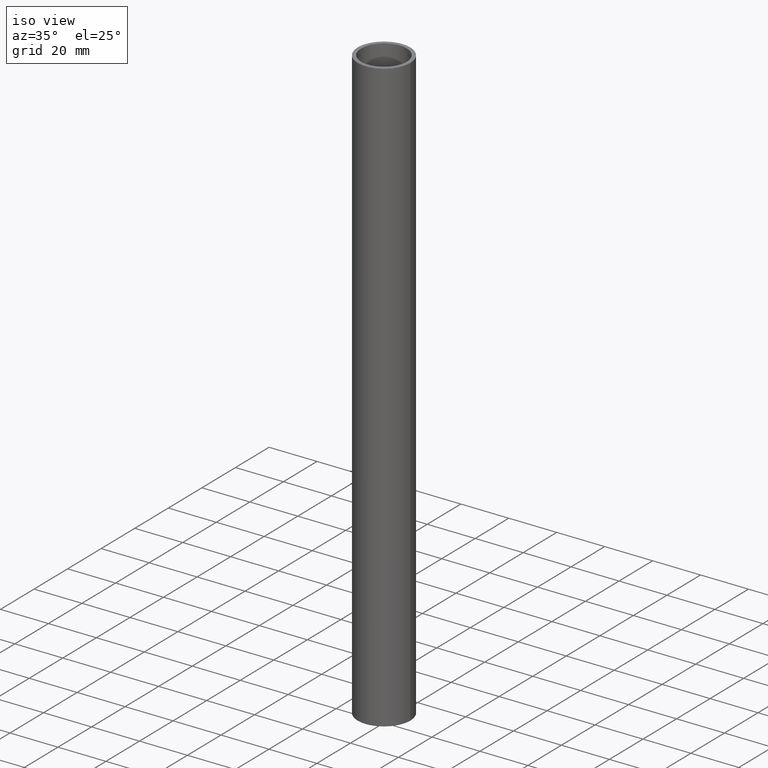
[diagram: clean part render]
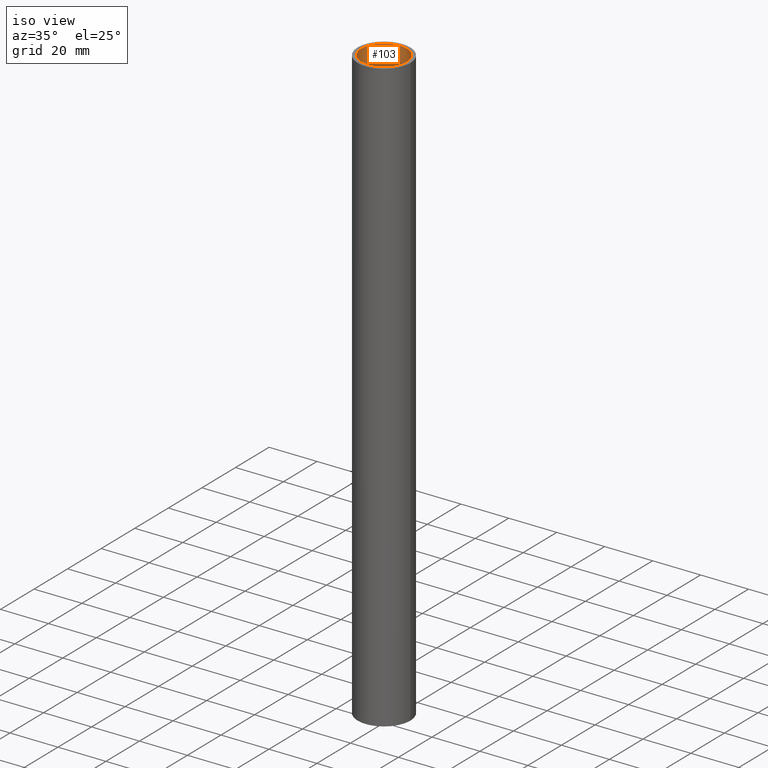
[diagram: same view with one face highlighted and labeled with its STEP entity id]
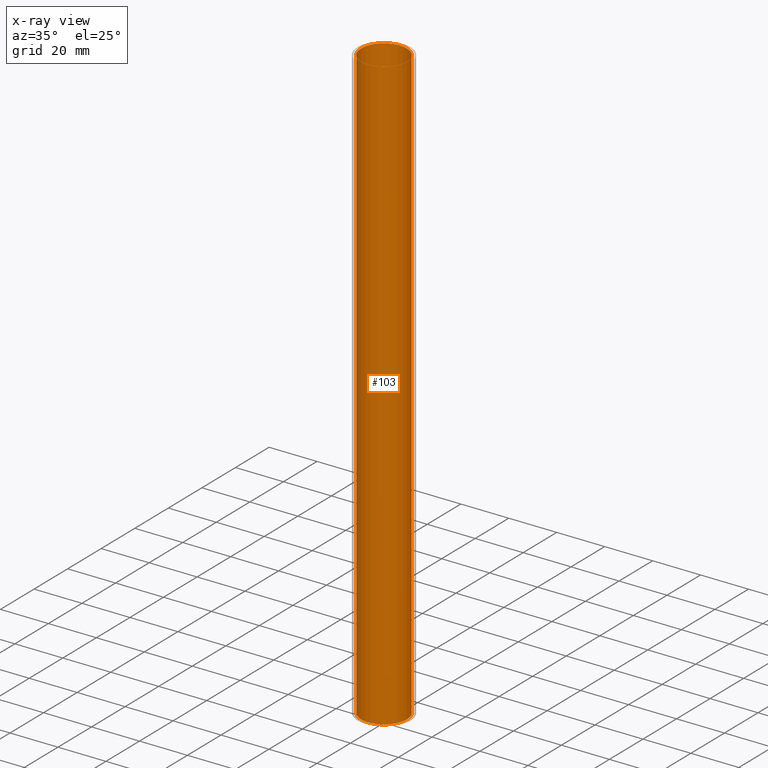
[diagram: x-ray of the same camera — body ghosted, the highlighted face saturated]
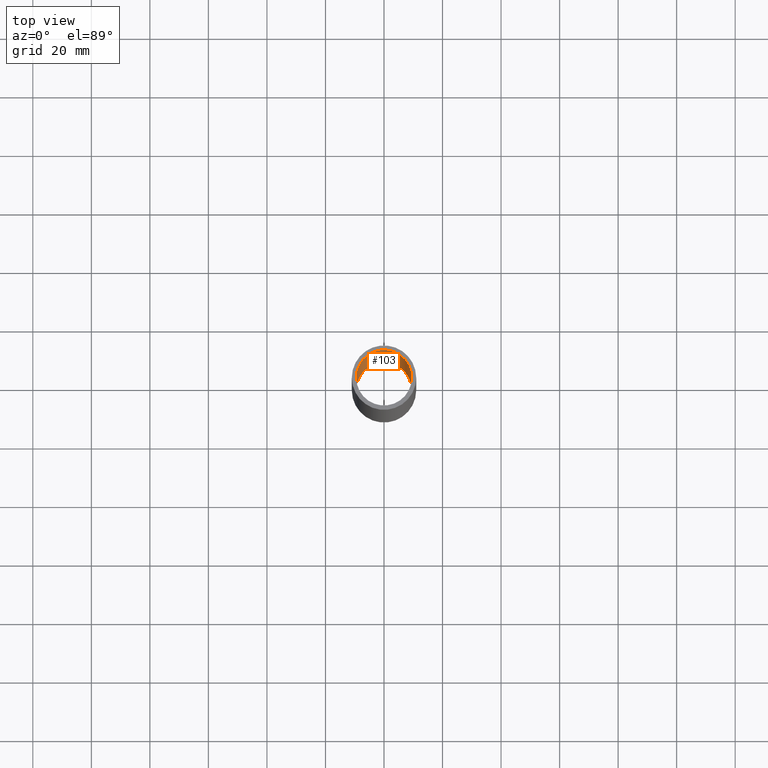
[diagram: same view with one face highlighted and labeled with its STEP entity id]
A machine part, iso view. The second image highlights one B-rep face of the part: STEP entity #103.
The next image is the same camera in x-ray: the body ghosted, the highlighted face saturated — about 0% of this face is hidden behind the body in this view.
A second angle (top view) of the same face is appended — the face is thin or edge-on in the first view.
In plain terms, the highlighted cylindrical surface (bore or boss wall) has radius 9.5 mm, axis along (0, 0, -1).
Its self-contained STEP definition (entity closure, byte-faithful):
#53=CARTESIAN_POINT('',(0.0,0.0,0.0));
#54=DIRECTION('',(0.0,0.0,-1.0));
#55=DIRECTION('',(1.0,-2.449294E-016,0.0));
#56=AXIS2_PLACEMENT_3D('',#53,#54,#55);
#57=CYLINDRICAL_SURFACE('',#56,9.500000000000000);
#58=CARTESIAN_POINT('',(9.500000000000000,-3.552714E-015,0.0));
#59=VERTEX_POINT('',#58);
#60=CARTESIAN_POINT('',(-9.500000000000000,0.0,0.0));
#61=VERTEX_POINT('',#60);
#62=CARTESIAN_POINT('',(0.0,0.0,0.0));
#63=DIRECTION('',(0.0,0.0,-1.0));
#64=DIRECTION('',(1.0,0.0,0.0));
#65=AXIS2_PLACEMENT_3D('',#62,#63,#64);
#66=CIRCLE('',#65,9.500000000000000);
#67=EDGE_CURVE('',#59,#61,#66,.T.);
#68=ORIENTED_EDGE('',*,*,#67,.T.);
#69=CARTESIAN_POINT('',(0.0,0.0,0.0));
#70=DIRECTION('',(0.0,0.0,-1.0));
#71=DIRECTION('',(1.0,0.0,0.0));
#72=AXIS2_PLACEMENT_3D('',#69,#70,#71);
#73=CIRCLE('',#72,9.500000000000000);
#74=EDGE_CURVE('',#61,#59,#73,.T.);
#75=ORIENTED_EDGE('',*,*,#74,.T.);
#76=CARTESIAN_POINT('',(9.500000000000000,-3.552714E-015,248.0));
#77=VERTEX_POINT('',#76);
#78=CARTESIAN_POINT('',(9.500000000000000,-3.552714E-015,0.0));
#79=DIRECTION('',(0.0,0.0,1.0));
#80=VECTOR('',#79,248.0);
#81=LINE('',#78,#80);
#82=EDGE_CURVE('',#59,#77,#81,.T.);
#83=ORIENTED_EDGE('',*,*,#82,.T.);
#84=CARTESIAN_POINT('',(-9.500000000000000,0.0,248.0));
#85=VERTEX_POINT('',#84);
#86=CARTESIAN_POINT('',(0.0,0.0,248.0));
#87=DIRECTION('',(0.0,0.0,-1.0));
#88=DIRECTION('',(1.0,0.0,0.0));
#89=AXIS2_PLACEMENT_3D('',#86,#87,#88);
#90=CIRCLE('',#89,9.500000000000000);
#91=EDGE_CURVE('',#85,#77,#90,.T.);
#92=ORIENTED_EDGE('',*,*,#91,.F.);
#93=CARTESIAN_POINT('',(0.0,0.0,248.0));
#94=DIRECTION('',(0.0,0.0,-1.0));
#95=DIRECTION('',(1.0,0.0,0.0));
#96=AXIS2_PLACEMENT_3D('',#93,#94,#95);
#97=CIRCLE('',#96,9.500000000000000);
#98=EDGE_CURVE('',#77,#85,#97,.T.);
#99=ORIENTED_EDGE('',*,*,#98,.F.);
#100=ORIENTED_EDGE('',*,*,#82,.F.);
#101=EDGE_LOOP('',(#68,#75,#83,#92,#99,#100));
#102=FACE_OUTER_BOUND('',#101,.T.);
#103=ADVANCED_FACE('',(#102),#57,.F.);